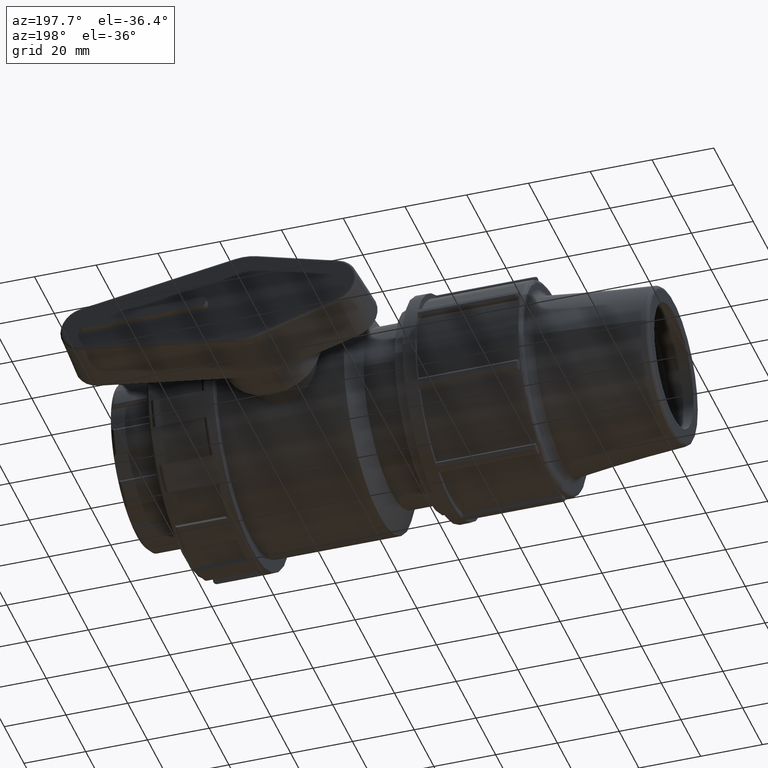
[diagram: clean part render]
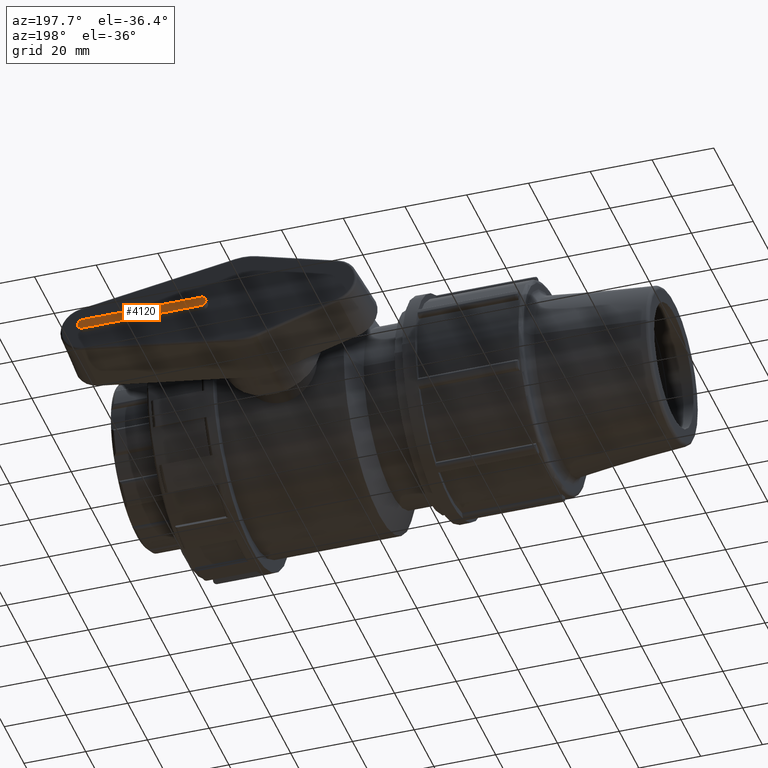
[diagram: same view with one face highlighted and labeled with its STEP entity id]
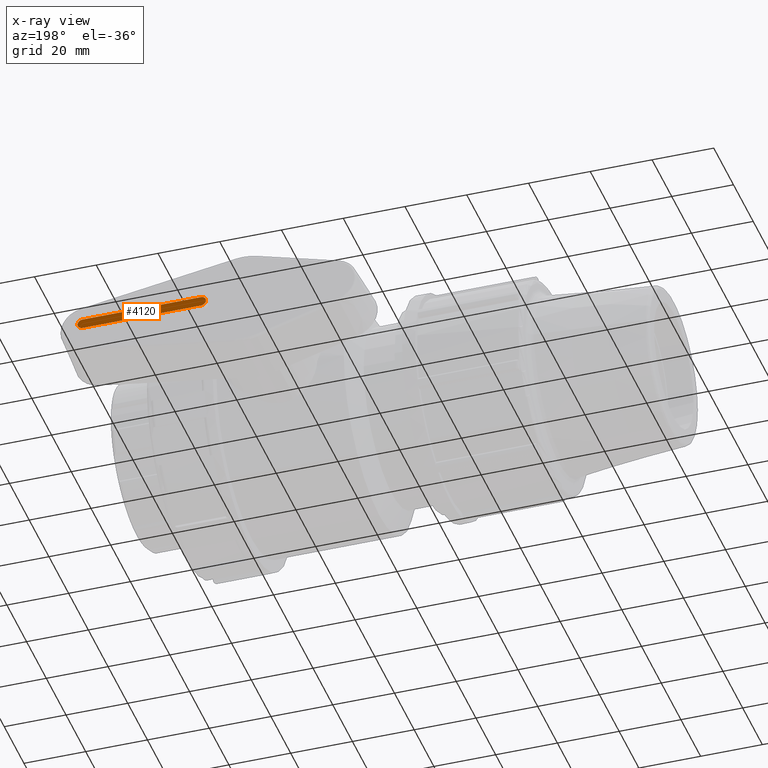
[diagram: x-ray of the same camera — body ghosted, the highlighted face saturated]
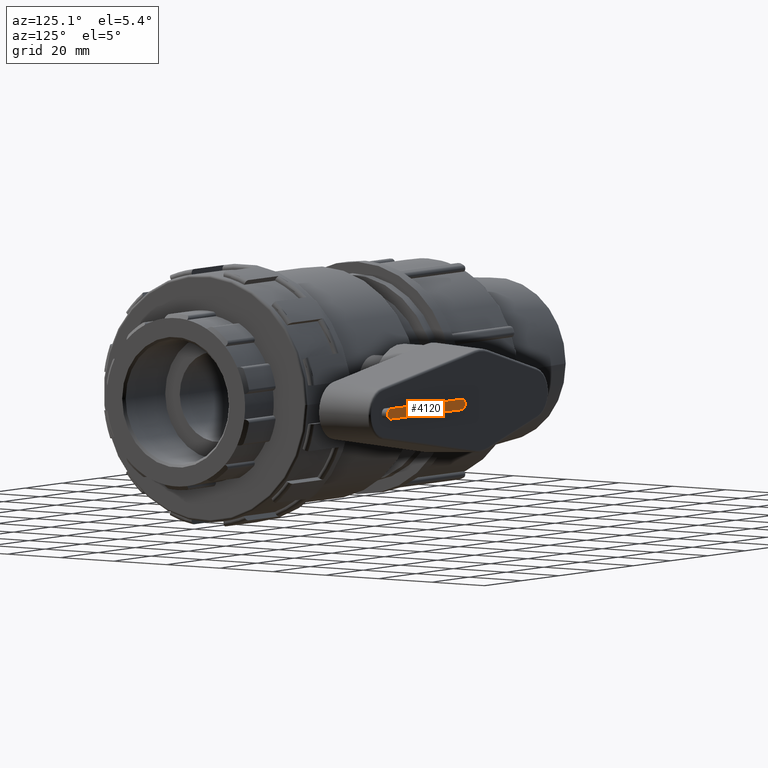
[diagram: same view with one face highlighted and labeled with its STEP entity id]
A machine part, auxiliary view. The second image highlights one B-rep face of the part: STEP entity #4120.
The next image is the same camera in x-ray: the body ghosted, the highlighted face saturated — about 0% of this face is hidden behind the body in this view.
A second angle (auxiliary view) of the same face is appended — the face is thin or edge-on in the first view.
In plain terms, the highlighted planar face has unit normal (-0, 1, 0).
Its self-contained STEP definition (entity closure, byte-faithful):
#147=PLANE('',#4522);
#500=FACE_OUTER_BOUND('',#757,.T.);
#757=EDGE_LOOP('',(#3326,#3327,#3328,#3329));
#1007=LINE('',#7629,#1235);
#1010=LINE('',#7636,#1238);
#1235=VECTOR('',#5433,38.4);
#1238=VECTOR('',#5442,38.4);
#1508=CIRCLE('',#4517,1.6);
#1509=CIRCLE('',#4520,1.6);
#1847=VERTEX_POINT('',#7622);
#1848=VERTEX_POINT('',#7624);
#1849=VERTEX_POINT('',#7628);
#1850=VERTEX_POINT('',#7632);
#2391=EDGE_CURVE('',#1848,#1847,#1508,.T.);
#2393=EDGE_CURVE('',#1849,#1848,#1007,.T.);
#2395=EDGE_CURVE('',#1850,#1849,#1509,.T.);
#2397=EDGE_CURVE('',#1847,#1850,#1010,.T.);
#3326=ORIENTED_EDGE('',*,*,#2397,.T.);
#3327=ORIENTED_EDGE('',*,*,#2395,.T.);
#3328=ORIENTED_EDGE('',*,*,#2393,.T.);
#3329=ORIENTED_EDGE('',*,*,#2391,.T.);
#4120=ADVANCED_FACE('',(#500),#147,.T.);
#4517=AXIS2_PLACEMENT_3D('',#7625,#5428,#5429);
#4520=AXIS2_PLACEMENT_3D('',#7633,#5437,#5438);
#4522=AXIS2_PLACEMENT_3D('',#7637,#5443,#5444);
#5428=DIRECTION('center_axis',(-3.33066907387547E-16,1.,0.));
#5429=DIRECTION('ref_axis',(-5.26681492788476E-17,-1.75420175981314E-32,
1.));
#5433=DIRECTION('',(1.,3.33066907387547E-16,9.3964188282077E-17));
#5437=DIRECTION('center_axis',(-3.33066907387547E-16,1.,0.));
#5438=DIRECTION('ref_axis',(0.,0.,-1.));
#5442=DIRECTION('',(-1.,-3.33066907387547E-16,2.89120579329468E-17));
#5443=DIRECTION('center_axis',(-3.33066907387547E-16,1.,0.));
#5444=DIRECTION('ref_axis',(0.,0.,1.));
#7622=CARTESIAN_POINT('',(51.2,76.22,-1.6));
#7624=CARTESIAN_POINT('',(51.2,76.22,1.6));
#7625=CARTESIAN_POINT('Origin',(51.2,76.22,0.));
#7628=CARTESIAN_POINT('',(12.8,76.22,1.6));
#7629=CARTESIAN_POINT('',(12.8,76.22,1.6));
#7632=CARTESIAN_POINT('',(12.8,76.22,-1.6));
#7633=CARTESIAN_POINT('Origin',(12.8,76.22,0.));
#7636=CARTESIAN_POINT('',(51.2,76.22,-1.6));
#7637=CARTESIAN_POINT('Origin',(32.0000057499704,76.22,5.95467889579782E-16));